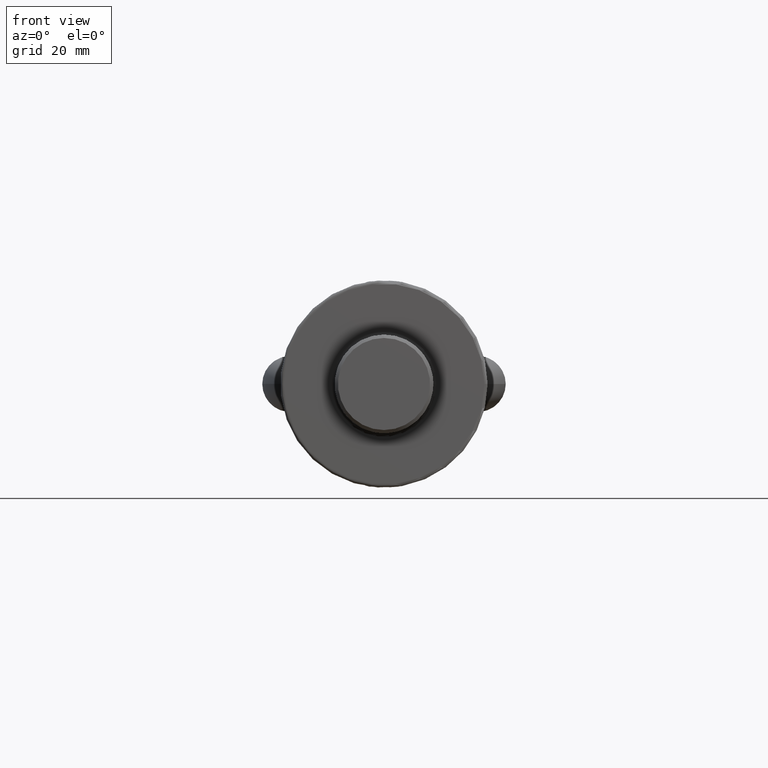
[diagram: clean part render]
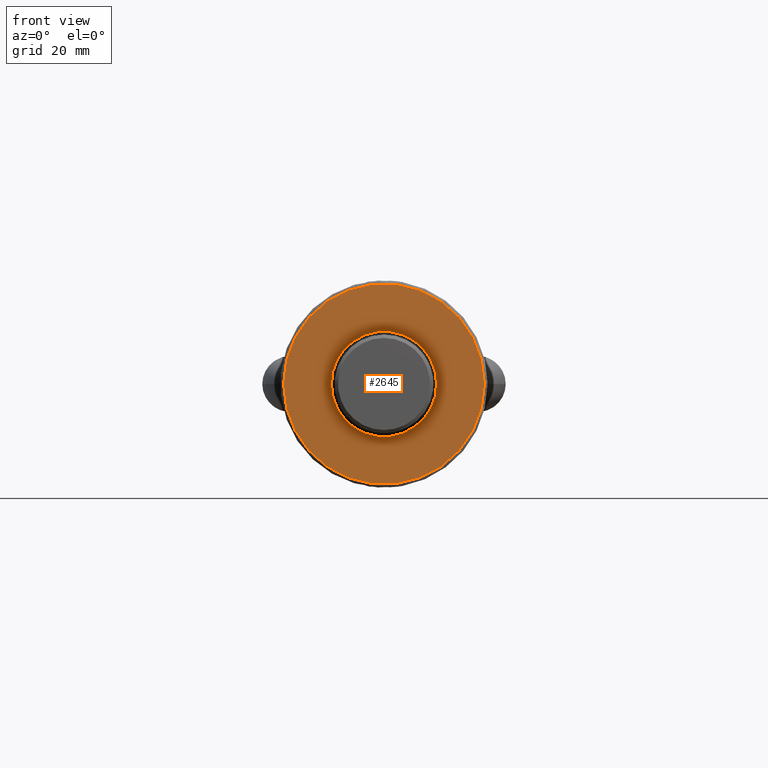
[diagram: same view with one face highlighted and labeled with its STEP entity id]
A machine part, front view. The second image highlights one B-rep face of the part: STEP entity #2645.
In plain terms, the highlighted planar face has unit normal (0, -1, 0).
Its self-contained STEP definition (entity closure, byte-faithful):
#2645=ADVANCED_FACE('',(#2993,#2994),#2888,.T.);
#2888=PLANE('',#5606);
#2993=FACE_BOUND('',#3065,.T.);
#2994=FACE_BOUND('',#3066,.T.);
#3065=EDGE_LOOP('',(#3351));
#3066=EDGE_LOOP('',(#3352));
#3351=ORIENTED_EDGE('',*,*,#4941,.T.);
#3352=ORIENTED_EDGE('',*,*,#4942,.T.);
#4543=VERTEX_POINT('',#6571);
#4544=VERTEX_POINT('',#6573);
#4941=EDGE_CURVE('',#4543,#4543,#5537,.T.);
#4942=EDGE_CURVE('',#4544,#4544,#5538,.T.);
#5537=CIRCLE('',#5604,16.);
#5538=CIRCLE('',#5605,30.5);
#5604=AXIS2_PLACEMENT_3D('',#6570,#5811,#5812);
#5605=AXIS2_PLACEMENT_3D('',#6572,#5813,#5814);
#5606=AXIS2_PLACEMENT_3D('',#6574,#5815,#5816);
#5811=DIRECTION('',(-4.23223526175924E-17,1.,0.));
#5812=DIRECTION('',(1.,4.23223526175924E-17,0.));
#5813=DIRECTION('',(4.23223526175924E-17,-1.,0.));
#5814=DIRECTION('',(1.,4.23223526175924E-17,0.));
#5815=DIRECTION('',(4.23223526175924E-17,-1.,0.));
#5816=DIRECTION('',(1.,4.23223526175924E-17,0.));
#6570=CARTESIAN_POINT('',(-4.23223526175924E-17,-6.50521303491303E-16,0.));
#6571=CARTESIAN_POINT('',(16.,2.6636338390175E-17,0.));
#6572=CARTESIAN_POINT('',(0.,-6.50521303491303E-16,0.));
#6573=CARTESIAN_POINT('',(30.5,6.40310451345264E-16,0.));
#6574=CARTESIAN_POINT('',(2.82111091146333E-32,-6.6657705372708E-16,0.));